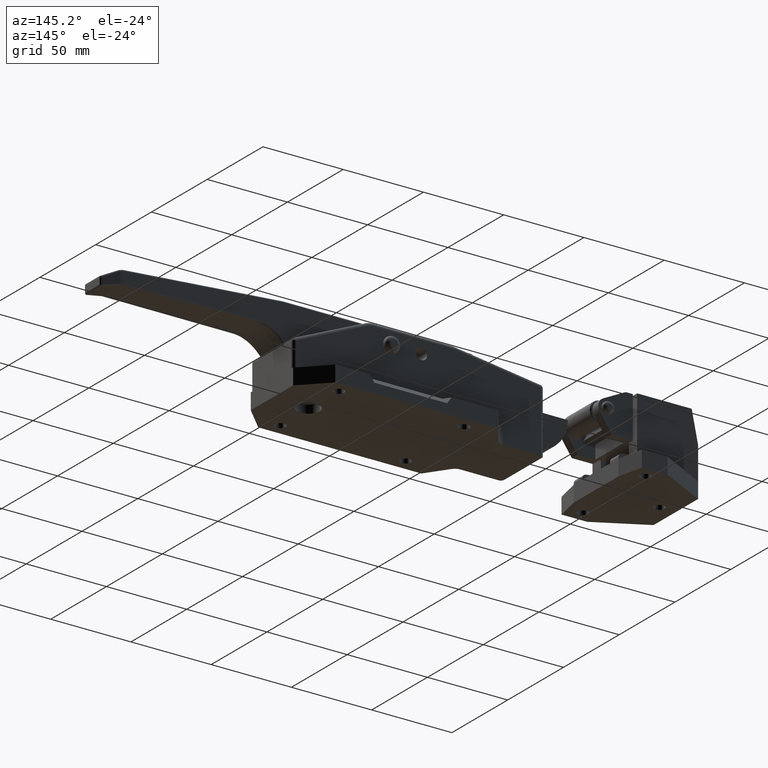
[diagram: clean part render]
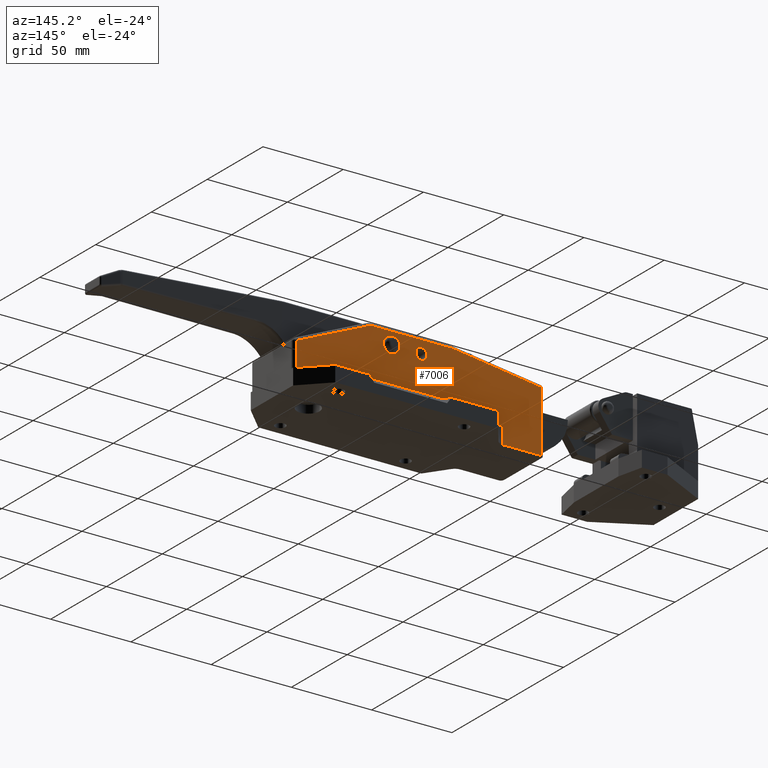
[diagram: same view with one face highlighted and labeled with its STEP entity id]
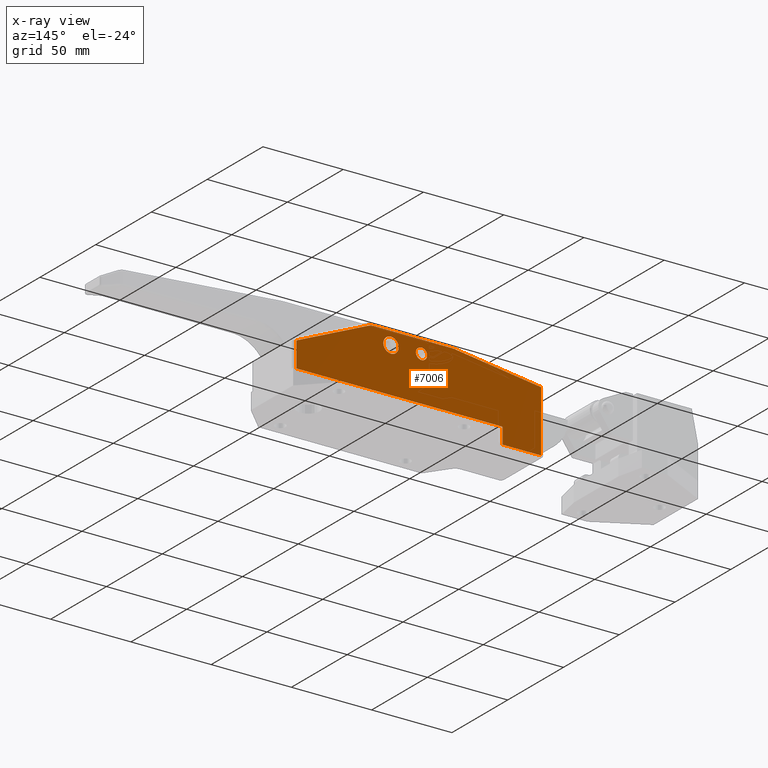
[diagram: x-ray of the same camera — body ghosted, the highlighted face saturated]
A machine part, auxiliary view. The second image highlights one B-rep face of the part: STEP entity #7006.
The next image is the same camera in x-ray: the body ghosted, the highlighted face saturated — about 0% of this face is hidden behind the body in this view.
In plain terms, the highlighted planar face has unit normal (0, -1, 0).
Its self-contained STEP definition (entity closure, byte-faithful):
#36 = AXIS2_PLACEMENT_3D ( 'NONE', #1561, #1498, #1300 ) ;
#59 = ORIENTED_EDGE ( 'NONE', *, *, #5277, .T. ) ;
#93 = DIRECTION ( 'NONE',  ( 0.0000000000000000000, -1.000000000000000000, 0.0000000000000000000 ) ) ;
#108 = DIRECTION ( 'NONE',  ( 0.0000000000000000000, 1.000000000000000000, 0.0000000000000000000 ) ) ;
#174 = CARTESIAN_POINT ( 'NONE',  ( -1.749999999999973800, 19.00000000000000000, 37.99999999999981500 ) ) ;
#244 = CARTESIAN_POINT ( 'NONE',  ( -43.99426061885908000, 19.00000000000000000, 78.29883287117934300 ) ) ;
#254 = VERTEX_POINT ( 'NONE', #2665 ) ;
#335 = DIRECTION ( 'NONE',  ( 0.9161573349021892000, 0.0000000000000000000, -0.4008188340197076900 ) ) ;
#388 = DIRECTION ( 'NONE',  ( 0.0000000000000000000, 0.0000000000000000000, -1.000000000000000000 ) ) ;
#394 = VECTOR ( 'NONE', #335, 1000.000000000000000 ) ;
#536 = VECTOR ( 'NONE', #6748, 1000.000000000000000 ) ;
#606 = LINE ( 'NONE', #6440, #5681 ) ;
#631 = CIRCLE ( 'NONE', #36, 8.000000000000000000 ) ;
#860 = CARTESIAN_POINT ( 'NONE',  ( 17.24999999999998600, 19.00000000000000000, 37.99999999999981500 ) ) ;
#880 = DIRECTION ( 'NONE',  ( -0.0000000000000000000, 1.000000000000000000, -0.0000000000000000000 ) ) ;
#928 = VERTEX_POINT ( 'NONE', #2474 ) ;
#934 = CARTESIAN_POINT ( 'NONE',  ( -22.16710504739782900, 19.00000000000000000, 45.92099181443698800 ) ) ;
#1300 = DIRECTION ( 'NONE',  ( 0.0000000000000000000, 0.0000000000000000000, -1.000000000000000000 ) ) ;
#1396 = EDGE_LOOP ( 'NONE', ( #4893, #6636 ) ) ;
#1483 = VECTOR ( 'NONE', #388, 1000.000000000000000 ) ;
#1487 = CARTESIAN_POINT ( 'NONE',  ( 17.24999999999998600, 19.00000000000000000, 33.24999999999981500 ) ) ;
#1498 = DIRECTION ( 'NONE',  ( -0.0000000000000000000, 1.000000000000000000, -0.0000000000000000000 ) ) ;
#1505 = ORIENTED_EDGE ( 'NONE', *, *, #3952, .F. ) ;
#1561 = CARTESIAN_POINT ( 'NONE',  ( -21.04554868429170300, 19.00000000000000000, 37.99999999999981500 ) ) ;
#1594 = VERTEX_POINT ( 'NONE', #1487 ) ;
#1609 = EDGE_CURVE ( 'NONE', #8310, #4144, #631, .T. ) ;
#1632 = EDGE_LOOP ( 'NONE', ( #59, #8198, #8500, #5886, #1998, #6985, #6533, #7290, #7702, #6557 ) ) ;
#1754 = CARTESIAN_POINT ( 'NONE',  ( -52.35283525275868800, 19.00000000000000000, 0.0000000000000000000 ) ) ;
#1804 = AXIS2_PLACEMENT_3D ( 'NONE', #174, #108, #1947 ) ;
#1805 = CARTESIAN_POINT ( 'NONE',  ( 76.24999999999998600, 19.00000000000000000, 25.69196885042845900 ) ) ;
#1808 = EDGE_LOOP ( 'NONE', ( #1505, #1873 ) ) ;
#1842 = EDGE_CURVE ( 'NONE', #6317, #1594, #6725, .T. ) ;
#1873 = ORIENTED_EDGE ( 'NONE', *, *, #1842, .F. ) ;
#1947 = DIRECTION ( 'NONE',  ( 0.0000000000000000000, 0.0000000000000000000, 1.000000000000000000 ) ) ;
#1998 = ORIENTED_EDGE ( 'NONE', *, *, #4107, .T. ) ;
#2088 = DIRECTION ( 'NONE',  ( -1.000000000000000000, 0.0000000000000000000, 0.0000000000000000000 ) ) ;
#2139 = LINE ( 'NONE', #244, #394 ) ;
#2302 = AXIS2_PLACEMENT_3D ( 'NONE', #3417, #93, #7794 ) ;
#2474 = CARTESIAN_POINT ( 'NONE',  ( -76.25000000000004300, 19.00000000000000000, 38.26323677690047000 ) ) ;
#2665 = CARTESIAN_POINT ( 'NONE',  ( -52.35283525275868800, 19.00000000000000000, 9.999999999999786800 ) ) ;
#2742 = DIRECTION ( 'NONE',  ( 1.000000000000000000, 0.0000000000000000000, -2.668805347656626200E-016 ) ) ;
#2750 = EDGE_CURVE ( 'NONE', #8675, #6613, #2139, .T. ) ;
#2772 = CARTESIAN_POINT ( 'NONE',  ( -78.25000000000004300, 19.00000000000000000, 9.999999999999786800 ) ) ;
#3009 = AXIS2_PLACEMENT_3D ( 'NONE', #7904, #3945, #3785 ) ;
#3019 = CARTESIAN_POINT ( 'NONE',  ( 17.24999999999998600, 19.00000000000000000, 37.99999999999981500 ) ) ;
#3191 = CARTESIAN_POINT ( 'NONE',  ( -1.749999999999973400, 19.00000000000000000, 34.49999999999980800 ) ) ;
#3201 = DIRECTION ( 'NONE',  ( 0.9901239768046110600, 0.0000000000000000000, 0.1401945453882635600 ) ) ;
#3241 = CARTESIAN_POINT ( 'NONE',  ( -76.25000000000004300, 19.00000000000000000, 0.0000000000000000000 ) ) ;
#3343 = AXIS2_PLACEMENT_3D ( 'NONE', #3019, #6976, #6988 ) ;
#3417 = CARTESIAN_POINT ( 'NONE',  ( -78.25000000000004300, 19.00000000000000000, 0.0000000000000000000 ) ) ;
#3519 = CARTESIAN_POINT ( 'NONE',  ( -1.749999999999973800, 19.00000000000000000, 41.49999999999981500 ) ) ;
#3599 = CARTESIAN_POINT ( 'NONE',  ( -52.35283525275868800, 19.00000000000000000, 0.0000000000000000000 ) ) ;
#3688 = EDGE_CURVE ( 'NONE', #4144, #7337, #606, .T. ) ;
#3777 = CARTESIAN_POINT ( 'NONE',  ( 28.15821543346719100, 19.00000000000000000, 45.99999999999981500 ) ) ;
#3785 = DIRECTION ( 'NONE',  ( 0.0000000000000000000, 0.0000000000000000000, 1.000000000000000000 ) ) ;
#3864 = VECTOR ( 'NONE', #6717, 1000.000000000000000 ) ;
#3945 = DIRECTION ( 'NONE',  ( 0.0000000000000000000, 1.000000000000000000, 0.0000000000000000000 ) ) ;
#3952 = EDGE_CURVE ( 'NONE', #1594, #6317, #5989, .T. ) ;
#4099 = CARTESIAN_POINT ( 'NONE',  ( 31.36476610562483100, 19.00000000000000000, 45.32925867921733200 ) ) ;
#4107 = EDGE_CURVE ( 'NONE', #928, #8310, #6705, .T. ) ;
#4108 = VERTEX_POINT ( 'NONE', #3191 ) ;
#4144 = VERTEX_POINT ( 'NONE', #7341 ) ;
#4193 = FACE_OUTER_BOUND ( 'NONE', #1632, .T. ) ;
#4308 = FACE_BOUND ( 'NONE', #1396, .T. ) ;
#4516 = CIRCLE ( 'NONE', #1804, 3.500000000000003100 ) ;
#4610 = CIRCLE ( 'NONE', #3009, 3.500000000000003100 ) ;
#4893 = ORIENTED_EDGE ( 'NONE', *, *, #5026, .F. ) ;
#4932 = VECTOR ( 'NONE', #7903, 1000.000000000000000 ) ;
#4950 = VECTOR ( 'NONE', #3201, 1000.000000000000200 ) ;
#4962 = EDGE_CURVE ( 'NONE', #6613, #7872, #5144, .T. ) ;
#5024 = LINE ( 'NONE', #1754, #1483 ) ;
#5026 = EDGE_CURVE ( 'NONE', #6082, #4108, #4516, .T. ) ;
#5032 = FACE_BOUND ( 'NONE', #1808, .T. ) ;
#5144 = LINE ( 'NONE', #7819, #4932 ) ;
#5277 = EDGE_CURVE ( 'NONE', #7872, #254, #7557, .T. ) ;
#5310 = DIRECTION ( 'NONE',  ( 0.0000000000000000000, 0.0000000000000000000, -1.000000000000000000 ) ) ;
#5326 = VERTEX_POINT ( 'NONE', #3599 ) ;
#5414 = CARTESIAN_POINT ( 'NONE',  ( -76.25000000000004300, 19.00000000000000000, 0.0000000000000000000 ) ) ;
#5577 = DIRECTION ( 'NONE',  ( -0.0000000000000000000, 1.000000000000000000, -0.0000000000000000000 ) ) ;
#5681 = VECTOR ( 'NONE', #2742, 1000.000000000000000 ) ;
#5710 = LINE ( 'NONE', #5414, #536 ) ;
#5886 = ORIENTED_EDGE ( 'NONE', *, *, #7811, .T. ) ;
#5989 = CIRCLE ( 'NONE', #3343, 4.749999999999997300 ) ;
#5994 = EDGE_CURVE ( 'NONE', #7337, #8675, #8518, .T. ) ;
#6082 = VERTEX_POINT ( 'NONE', #3519 ) ;
#6317 = VERTEX_POINT ( 'NONE', #7398 ) ;
#6440 = CARTESIAN_POINT ( 'NONE',  ( -78.24999999999998600, 19.00000000000000000, 45.99999999999981500 ) ) ;
#6533 = ORIENTED_EDGE ( 'NONE', *, *, #3688, .T. ) ;
#6557 = ORIENTED_EDGE ( 'NONE', *, *, #4962, .T. ) ;
#6606 = VECTOR ( 'NONE', #2088, 1000.000000000000000 ) ;
#6613 = VERTEX_POINT ( 'NONE', #1805 ) ;
#6636 = ORIENTED_EDGE ( 'NONE', *, *, #7267, .F. ) ;
#6663 = CARTESIAN_POINT ( 'NONE',  ( 28.15821543346719100, 19.00000000000000000, 37.99999999999981500 ) ) ;
#6670 = EDGE_CURVE ( 'NONE', #254, #5326, #5024, .T. ) ;
#6705 = LINE ( 'NONE', #7268, #4950 ) ;
#6717 = DIRECTION ( 'NONE',  ( -1.000000000000000000, -0.0000000000000000000, -0.0000000000000000000 ) ) ;
#6724 = CARTESIAN_POINT ( 'NONE',  ( -78.25000000000004300, 19.00000000000000000, 0.0000000000000000000 ) ) ;
#6725 = CIRCLE ( 'NONE', #7050, 4.749999999999997300 ) ;
#6748 = DIRECTION ( 'NONE',  ( 0.0000000000000000000, 0.0000000000000000000, 1.000000000000000000 ) ) ;
#6976 = DIRECTION ( 'NONE',  ( -0.0000000000000000000, 1.000000000000000000, -0.0000000000000000000 ) ) ;
#6985 = ORIENTED_EDGE ( 'NONE', *, *, #1609, .T. ) ;
#6988 = DIRECTION ( 'NONE',  ( 0.0000000000000000000, 0.0000000000000000000, -1.000000000000000000 ) ) ;
#6990 = EDGE_CURVE ( 'NONE', #5326, #8099, #7197, .T. ) ;
#7006 = ADVANCED_FACE ( 'NONE', ( #4193, #4308, #5032 ), #7785, .F. ) ;
#7050 = AXIS2_PLACEMENT_3D ( 'NONE', #860, #880, #8454 ) ;
#7197 = LINE ( 'NONE', #6724, #3864 ) ;
#7239 = AXIS2_PLACEMENT_3D ( 'NONE', #6663, #5577, #5310 ) ;
#7267 = EDGE_CURVE ( 'NONE', #4108, #6082, #4610, .T. ) ;
#7268 = CARTESIAN_POINT ( 'NONE',  ( -83.52201014146921000, 19.00000000000000000, 37.23357162412588700 ) ) ;
#7290 = ORIENTED_EDGE ( 'NONE', *, *, #5994, .T. ) ;
#7337 = VERTEX_POINT ( 'NONE', #3777 ) ;
#7341 = CARTESIAN_POINT ( 'NONE',  ( -21.04554868429170300, 19.00000000000000000, 45.99999999999981500 ) ) ;
#7398 = CARTESIAN_POINT ( 'NONE',  ( 17.24999999999998600, 19.00000000000000000, 42.74999999999980800 ) ) ;
#7557 = LINE ( 'NONE', #2772, #6606 ) ;
#7702 = ORIENTED_EDGE ( 'NONE', *, *, #2750, .T. ) ;
#7785 = PLANE ( 'NONE',  #2302 ) ;
#7794 = DIRECTION ( 'NONE',  ( 0.0000000000000000000, -0.0000000000000000000, -1.000000000000000000 ) ) ;
#7811 = EDGE_CURVE ( 'NONE', #8099, #928, #5710, .T. ) ;
#7819 = CARTESIAN_POINT ( 'NONE',  ( 76.25000000000001400, 19.00000000000000000, 0.0000000000000000000 ) ) ;
#7872 = VERTEX_POINT ( 'NONE', #8383 ) ;
#7903 = DIRECTION ( 'NONE',  ( 5.139921410301650800E-016, 0.0000000000000000000, -1.000000000000000000 ) ) ;
#7904 = CARTESIAN_POINT ( 'NONE',  ( -1.749999999999973800, 19.00000000000000000, 37.99999999999981500 ) ) ;
#8099 = VERTEX_POINT ( 'NONE', #3241 ) ;
#8198 = ORIENTED_EDGE ( 'NONE', *, *, #6670, .T. ) ;
#8310 = VERTEX_POINT ( 'NONE', #934 ) ;
#8383 = CARTESIAN_POINT ( 'NONE',  ( 76.25000000000001400, 19.00000000000000000, 9.999999999999786800 ) ) ;
#8454 = DIRECTION ( 'NONE',  ( 0.0000000000000000000, 0.0000000000000000000, -1.000000000000000000 ) ) ;
#8500 = ORIENTED_EDGE ( 'NONE', *, *, #6990, .T. ) ;
#8518 = CIRCLE ( 'NONE', #7239, 8.000000000000000000 ) ;
#8675 = VERTEX_POINT ( 'NONE', #4099 ) ;